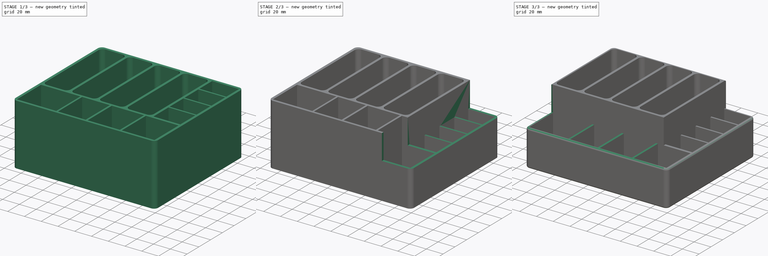
[diagram: build sequence overview — one tinted view per stage of 3, left to right]
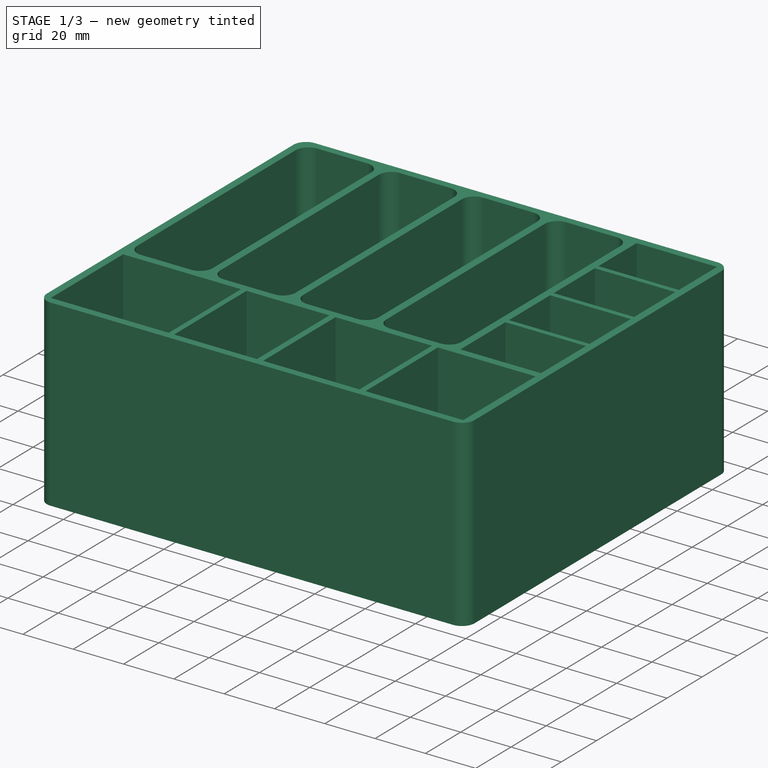
[diagram: stage 1 of 3 — iso view after this stage's code; geometry added in this stage tinted green]
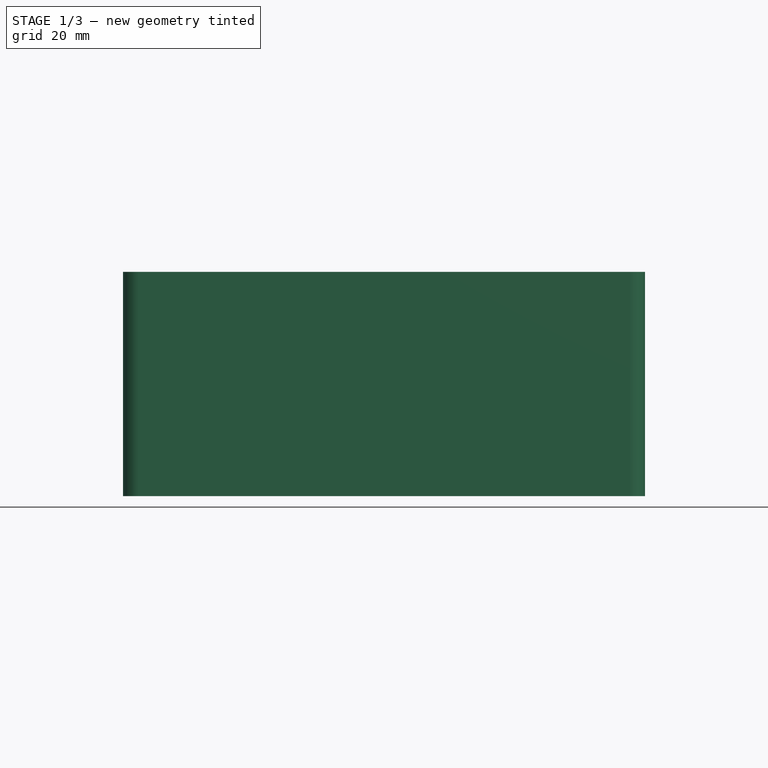
[diagram: stage 1 of 3 — front view after this stage's code; geometry added in this stage tinted green]
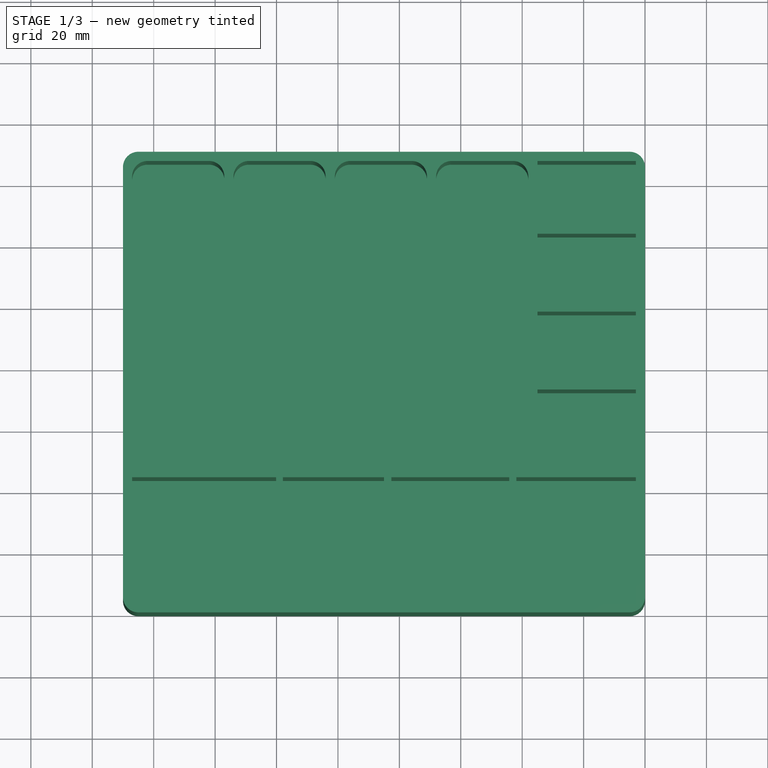
[diagram: stage 1 of 3 — top view after this stage's code; geometry added in this stage tinted green]
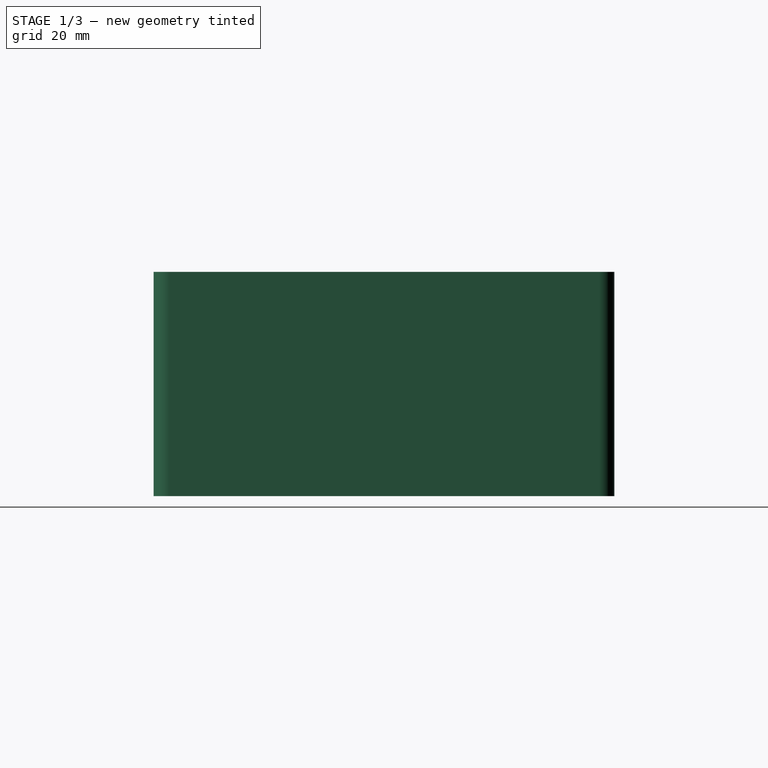
[diagram: stage 1 of 3 — right view after this stage's code; geometry added in this stage tinted green]
FCSTD DOCUMENT  (FreeCAD 1.1R20251125 (Git shallow))
Label: box-2
License: All rights reserved
LicenseURL: https://en.wikipedia.org/wiki/All_rights_reserved
objects: Sketcher::SketchObject×4, PartDesign::Pad×2, PartDesign::Pocket×2, App::Point×1, PartDesign::Fillet×1, PartDesign::Body×1
note: 24 computed .brp shape members not serialized (recipe doc carries the construction recipe); baked Part::Feature solids carry a one-line shape summary decoded from their .brp

FEATURE [App::Point] Origin001
  Role = Origin
FEATURE [Sketcher::SketchObject] Sketch
  ArcFitTolerance = 1e-06
  AttachmentSupport = -> [Origin]
  ExternalTypes = [0]
  FullyConstrained = false
  MakeInternals = false
  MapMode = 5
  sketch-geometry (84):
    g0: LineSegment StartX=0 StartY=5 StartZ=0 EndX=0 EndY=145 EndZ=0
    g1: LineSegment StartX=-5 StartY=150 StartZ=0 EndX=-165 EndY=150 EndZ=0
    g2: LineSegment StartX=-170 StartY=145 StartZ=0 EndX=-170 EndY=5 EndZ=0
    g3: LineSegment StartX=-165 StartY=0 StartZ=0 EndX=-5 EndY=0 EndZ=0
    g4: ArcOfCircle CenterX=-5 CenterY=5 CenterZ=0 NormalX=0 NormalY=0 NormalZ=1 AngleXU=0 Radius=5 StartAngle=4.71239 EndAngle=6.28319
    g5: ArcOfCircle CenterX=-5 CenterY=145 CenterZ=0 NormalX=0 NormalY=0 NormalZ=1 AngleXU=0 Radius=5 StartAngle=0 EndAngle=1.5708
    g6: ArcOfCircle CenterX=-165 CenterY=145 CenterZ=0 NormalX=0 NormalY=0 NormalZ=1 AngleXU=0 Radius=5 StartAngle=1.5708 EndAngle=3.14159
    g7: ArcOfCircle CenterX=-165 CenterY=5 CenterZ=0 NormalX=0 NormalY=0 NormalZ=1 AngleXU=0 Radius=5 StartAngle=3.14159 EndAngle=4.71239
    g8: GeomPoint [constr] X=0 Y=0 Z=0
    g9: GeomPoint [constr] X=-170 Y=150 Z=0
    g10: LineSegment StartX=-137 StartY=52 StartZ=0 EndX=-137 EndY=142 EndZ=0
    g11: LineSegment StartX=-142 StartY=147 StartZ=0 EndX=-162 EndY=147 EndZ=0
    g12: LineSegment StartX=-167 StartY=142 StartZ=0 EndX=-167 EndY=52 EndZ=0
    g13: LineSegment StartX=-162 StartY=47 StartZ=0 EndX=-142 EndY=47 EndZ=0
    g14: ArcOfCircle CenterX=-142 CenterY=52 CenterZ=0 NormalX=0 NormalY=0 NormalZ=1 AngleXU=0 Radius=5 StartAngle=4.71239 EndAngle=6.28319
    g15: ArcOfCircle CenterX=-142 CenterY=142 CenterZ=0 NormalX=0 NormalY=0 NormalZ=1 AngleXU=0 Radius=5 StartAngle=2.7e-15 EndAngle=1.5708
    g16: ArcOfCircle CenterX=-162 CenterY=142 CenterZ=0 NormalX=0 NormalY=0 NormalZ=1 AngleXU=0 Radius=5 StartAngle=1.5708 EndAngle=3.14159
    g17: ArcOfCircle CenterX=-162 CenterY=52 CenterZ=0 NormalX=0 NormalY=0 NormalZ=1 AngleXU=0 Radius=5 StartAngle=3.14159 EndAngle=4.71239
    g18: GeomPoint [constr] X=-137 Y=47 Z=0
    g19: GeomPoint [constr] X=-167 Y=147 Z=0
    g20: LineSegment StartX=-104 StartY=52 StartZ=0 EndX=-104 EndY=142 EndZ=0
    g21: LineSegment StartX=-109 StartY=147 StartZ=0 EndX=-129 EndY=147 EndZ=0
    g22: LineSegment StartX=-134 StartY=142 StartZ=0 EndX=-134 EndY=52 EndZ=0
    g23: LineSegment StartX=-129 StartY=47 StartZ=0 EndX=-109 EndY=47 EndZ=0
    g24: ArcOfCircle CenterX=-109 CenterY=52 CenterZ=0 NormalX=0 NormalY=0 NormalZ=1 AngleXU=0 Radius=5 StartAngle=4.71239 EndAngle=6.28319
    g25: ArcOfCircle CenterX=-109 CenterY=142 CenterZ=0 NormalX=0 NormalY=0 NormalZ=1 AngleXU=0 Radius=5 StartAngle=0 EndAngle=1.5708
    g26: ArcOfCircle CenterX=-129 CenterY=142 CenterZ=0 NormalX=0 NormalY=0 NormalZ=1 AngleXU=0 Radius=5 StartAngle=1.5708 EndAngle=3.14159
    g27: ArcOfCircle CenterX=-129 CenterY=52 CenterZ=0 NormalX=0 NormalY=0 NormalZ=1 AngleXU=0 Radius=5 StartAngle=3.14159 EndAngle=4.71239
    g28: GeomPoint [constr] X=-104 Y=47 Z=0
    g29: GeomPoint [constr] X=-134 Y=147 Z=0
    g30: LineSegment StartX=-71 StartY=52.0004 StartZ=0 EndX=-71 EndY=142 EndZ=0
    g31: LineSegment StartX=-76 StartY=147 StartZ=0 EndX=-96 EndY=147 EndZ=0
    g32: LineSegment StartX=-101 StartY=142 StartZ=0 EndX=-101 EndY=52.0004 EndZ=0
    g33: LineSegment StartX=-96 StartY=47.0004 StartZ=0 EndX=-76 EndY=47.0004 EndZ=0
    g34: ArcOfCircle CenterX=-76 CenterY=52.0004 CenterZ=0 NormalX=0 NormalY=0 NormalZ=1 AngleXU=0 Radius=5 StartAngle=4.71239 EndAngle=6.28319
    g35: ArcOfCircle CenterX=-76 CenterY=142 CenterZ=0 NormalX=0 NormalY=0 NormalZ=1 AngleXU=0 Radius=5 StartAngle=2.4e-15 EndAngle=1.5708
    g36: ArcOfCircle CenterX=-96 CenterY=142 CenterZ=0 NormalX=0 NormalY=0 NormalZ=1 AngleXU=0 Radius=5 StartAngle=1.5708 EndAngle=3.14159
    g37: ArcOfCircle CenterX=-96 CenterY=52.0004 CenterZ=0 NormalX=0 NormalY=0 NormalZ=1 AngleXU=0 Radius=5 StartAngle=3.14159 EndAngle=4.71239
    g38: GeomPoint [constr] X=-71 Y=47.0004 Z=0
    g39: GeomPoint [constr] X=-101 Y=147 Z=0
    g40: LineSegment StartX=-38 StartY=52 StartZ=0 EndX=-38 EndY=142 EndZ=0
    g41: LineSegment StartX=-43 StartY=147 StartZ=0 EndX=-63 EndY=147 EndZ=0
    g42: LineSegment StartX=-68 StartY=142 StartZ=0 EndX=-68 EndY=52 EndZ=0
    g43: LineSegment StartX=-63 StartY=47 StartZ=0 EndX=-43 EndY=47 EndZ=0
    g44: ArcOfCircle CenterX=-43 CenterY=52 CenterZ=0 NormalX=0 NormalY=0 NormalZ=1 AngleXU=0 Radius=5 StartAngle=4.71239 EndAngle=6.28319
    g45: ArcOfCircle CenterX=-43 CenterY=142 CenterZ=0 NormalX=0 NormalY=0 NormalZ=1 AngleXU=0 Radius=5 StartAngle=-9e-16 EndAngle=1.5708
    g46: ArcOfCircle CenterX=-63 CenterY=142 CenterZ=0 NormalX=0 NormalY=0 NormalZ=1 AngleXU=0 Radius=5 StartAngle=1.5708 EndAngle=3.14159
    g47: ArcOfCircle CenterX=-63 CenterY=52 CenterZ=0 NormalX=0 NormalY=0 NormalZ=1 AngleXU=0 Radius=5 StartAngle=3.14159 EndAngle=4.71239
    g48: GeomPoint [constr] X=-38 Y=47 Z=0
    g49: GeomPoint [constr] X=-68 Y=147 Z=0
    g50: LineSegment StartX=-35 StartY=147 StartZ=0 EndX=-35 EndY=125.307 EndZ=0
    g51: LineSegment StartX=-35 StartY=47 StartZ=0 EndX=-3 EndY=47 EndZ=0
    g52: LineSegment StartX=-3 StartY=47 StartZ=0 EndX=-3 EndY=72.4674 EndZ=0
    g53: LineSegment StartX=-3 StartY=147 StartZ=0 EndX=-35 EndY=147 EndZ=0
    g54: LineSegment StartX=-35 StartY=123.307 StartZ=0 EndX=-3 EndY=123.307 EndZ=0
    g55: LineSegment StartX=-3 StartY=125.307 StartZ=0 EndX=-35 EndY=125.307 EndZ=0
    g56: LineSegment StartX=-3 StartY=125.307 StartZ=0 EndX=-3 EndY=147 EndZ=0
    g57: LineSegment StartX=-35 StartY=123.307 StartZ=0 EndX=-35 EndY=99.9347 EndZ=0
    g58: LineSegment StartX=-3 StartY=99.9347 StartZ=0 EndX=-35 EndY=99.9347 EndZ=0
    g59: LineSegment StartX=-35 StartY=97.9347 StartZ=0 EndX=-3 EndY=97.9347 EndZ=0
    g60: LineSegment StartX=-3 StartY=74.5626 StartZ=0 EndX=-35 EndY=74.5626 EndZ=0
    g61: LineSegment StartX=-35 StartY=72.5626 StartZ=0 EndX=-3 EndY=72.5626 EndZ=0
    g62: LineSegment StartX=-35 StartY=97.9347 StartZ=0 EndX=-35 EndY=74.5626 EndZ=0
    g63: LineSegment StartX=-3 StartY=99.9347 StartZ=0 EndX=-3 EndY=123.307 EndZ=0
    g64: LineSegment StartX=-35 StartY=72.4674 StartZ=0 EndX=-35 EndY=47 EndZ=0
    g65: LineSegment StartX=-3 StartY=72.4674 StartZ=0 EndX=-3 EndY=72.5626 EndZ=0
    g66: LineSegment StartX=-35 StartY=72.5626 StartZ=0 EndX=-35 EndY=72.4674 EndZ=0
    g67: LineSegment StartX=-3 StartY=74.5626 StartZ=0 EndX=-3 EndY=97.9347 EndZ=0
    g68: LineSegment StartX=-167 StartY=44 StartZ=0 EndX=-167 EndY=3 EndZ=0
    g69: LineSegment StartX=-167 StartY=3 StartZ=0 EndX=-120.132 EndY=3 EndZ=0
    g70: LineSegment StartX=-3 StartY=2.89996 StartZ=0 EndX=-3 EndY=44 EndZ=0
    g71: LineSegment StartX=-3 StartY=44 StartZ=0 EndX=-41.8951 EndY=44 EndZ=0
    g72: LineSegment StartX=-120.132 StartY=44 StartZ=0 EndX=-120.132 EndY=3 EndZ=0
    g73: LineSegment StartX=-85 StartY=44 StartZ=0 EndX=-85 EndY=2.89996 EndZ=0
    g74: LineSegment StartX=-44.2328 StartY=44 StartZ=0 EndX=-44.2328 EndY=2.89996 EndZ=0
    g75: LineSegment StartX=-117.944 StartY=44 StartZ=0 EndX=-117.944 EndY=2.89996 EndZ=0
    g76: LineSegment StartX=-120.132 StartY=44 StartZ=0 EndX=-167 EndY=44 EndZ=0
    g77: LineSegment StartX=-117.944 StartY=2.89996 StartZ=0 EndX=-85 EndY=2.89996 EndZ=0
    g78: LineSegment StartX=-82.5781 StartY=44 StartZ=0 EndX=-82.5781 EndY=2.89996 EndZ=0
    g79: LineSegment StartX=-41.8951 StartY=44 StartZ=0 EndX=-41.8951 EndY=2.89996 EndZ=0
    g80: LineSegment StartX=-85 StartY=44 StartZ=0 EndX=-117.944 EndY=44 EndZ=0
    g81: LineSegment StartX=-82.5781 StartY=2.89996 StartZ=0 EndX=-44.2328 EndY=2.89996 EndZ=0
    g82: LineSegment StartX=-44.2328 StartY=44 StartZ=0 EndX=-82.5781 EndY=44 EndZ=0
    g83: LineSegment StartX=-41.8951 StartY=2.89996 StartZ=0 EndX=-3 EndY=2.89996 EndZ=0
  constraints (187):
    c: Tangent(g0,g4) = -1.5708
    c: Tangent(g0,g5) = -1.5708
    c: Tangent(g1,g5) = -1.5708
    c: Tangent(g1,g6) = -1.5708
    c: Tangent(g2,g6) = -1.5708
    c: Tangent(g2,g7) = -1.5708
    c: Tangent(g3,g7) = -1.5708
    c: Tangent(g3,g4) = -1.5708
    c: Vertical(g0)
    c: Vertical(g2)
    c: Horizontal(g1)
    c: Horizontal(g3)
    c: Equal(g4,g5)
    c: Equal(g5,g6)
    c: Equal(g6,g7)
    c: PointOnObject(g8,g0)
    c: PointOnObject(g8,g3)
    c: PointOnObject(g9,g1)
    c: PointOnObject(g9,g2)
    c: Coincident(g8,g-1)
    c: Radius(g5) = 5
    c: Distance(g0,g2) = 170
    c: Distance(g3,g1) = 150
    c: Tangent(g10,g14) = -1.5708
    c: Tangent(g10,g15) = -1.5708
    c: Tangent(g11,g15) = -1.5708
    c: Tangent(g11,g16) = -1.5708
    c: Tangent(g12,g16) = -1.5708
    c: Tangent(g12,g17) = -1.5708
    c: Tangent(g13,g17) = -1.5708
    c: Tangent(g13,g14) = -1.5708
    c: Vertical(g10)
    c: Vertical(g12)
    c: Horizontal(g11)
    c: Horizontal(g13)
    c: Equal(g14,g15)
    c: Equal(g15,g16)
    c: Equal(g16,g17)
    c: PointOnObject(g18,g10)
    c: PointOnObject(g18,g13)
    c: PointOnObject(g19,g11)
    c: PointOnObject(g19,g12)
    c: Radius(g15) = 5
    c: Distance(g10,g12) = 30
    c: Distance(g13,g11) = 100
    c: Distance(g1,g11) = 3
    c: Distance(g12,g2) = 3
    c: Tangent(g20,g24) = -1.5708
    c: Tangent(g30,g34) = -1.5708
    c: Tangent(g40,g44) = -1.5708
    c: Tangent(g20,g25) = -1.5708
    c: Tangent(g30,g35) = -1.5708
    c: Tangent(g40,g45) = -1.5708
    c: Tangent(g21,g25) = -1.5708
    c: Tangent(g31,g35) = -1.5708
    c: Tangent(g41,g45) = -1.5708
    c: Tangent(g21,g26) = -1.5708
    c: Tangent(g31,g36) = -1.5708
    c: Tangent(g41,g46) = -1.5708
    c: Tangent(g22,g26) = -1.5708
    c: Tangent(g32,g36) = -1.5708
    c: Tangent(g42,g46) = -1.5708
    c: Tangent(g22,g27) = -1.5708
    c: Tangent(g32,g37) = -1.5708
    c: Tangent(g42,g47) = -1.5708
    c: Tangent(g23,g27) = -1.5708
    c: Tangent(g33,g37) = -1.5708
    c: Tangent(g43,g47) = -1.5708
    c: Tangent(g23,g24) = -1.5708
    c: Tangent(g33,g34) = -1.5708
    c: Tangent(g43,g44) = -1.5708
    c: Vertical(g20)
    c: Vertical(g30)
    c: Vertical(g40)
    c: Vertical(g22)
    c: Vertical(g32)
    c: Vertical(g42)
    c: Horizontal(g21)
    c: Horizontal(g31)
    c: Horizontal(g41)
    c: Horizontal(g23)
    c: Horizontal(g33)
    c: Horizontal(g43)
    c: Equal(g24,g25)
    c: Equal(g34,g35)
    c: Equal(g44,g45)
    c: Equal(g25,g26)
    c: Equal(g35,g36)
    c: Equal(g45,g46)
    c: Equal(g26,g27)
    c: Equal(g36,g37)
    c: Equal(g46,g47)
    c: PointOnObject(g28,g20)
    c: PointOnObject(g38,g30)
    c: PointOnObject(g48,g40)
    c: PointOnObject(g28,g23)
    c: PointOnObject(g38,g33)
    c: PointOnObject(g48,g43)
    c: PointOnObject(g29,g21)
    c: PointOnObject(g39,g31)
    c: PointOnObject(g49,g41)
    c: PointOnObject(g29,g22)
    c: PointOnObject(g39,g32)
    c: PointOnObject(g49,g42)
    c: Radius(g25) = 5
    c: Radius(g35) = 5
    c: Radius(g45) = 5
    c: Distance(g20,g22) = 30
    c: Distance(g30,g32) = 30
    c: Distance(g40,g42) = 30
    c: Distance(g23,g21) = 100
    c: Distance(g33,g31) = 100
    c: Distance(g43,g41) = 100
    c: Distance(g22,g10) = 3
    c: Distance(g32,g20) = 3
    c: Distance(g42,g30) = 3
    c: Coincident(g64,g51)
    c: Coincident(g51,g52)
    c: Coincident(g56,g53)
    c: Coincident(g53,g50)
    c: Horizontal(g51)
    c: Horizontal(g53)
    c: Distance(g50,g40) = 3
    c: Distance(g53,g1) = 3
    c: Distance(g51,g53) = 100
    c: Horizontal(g54)
    c: Horizontal(g55)
    c: Distance(g54,g55) = 2
    c: Vertical(g56)
    c: Coincident(g56,g55)
    c: Vertical(g50)
    c: Coincident(g55,g50)
    c: Coincident(g57,g54)
    c: Horizontal(g59)
    c: Horizontal(g61)
    c: Horizontal(g58)
    c: Horizontal(g60)
    c: Distance(g59,g58) = 2
    c: Distance(g61,g60) = 2
    c: Vertical(g57)
    c: Coincident(g57,g58)
    c: Coincident(g62,g59)
    c: Vertical(g63)
    c: Coincident(g67,g59)
    c: Coincident(g63,g58)
    c: Coincident(g66,g64)
    c: Coincident(g52,g65)
    c: Coincident(g62,g60)
    c: Coincident(g66,g61)
    c: Coincident(g65,g61)
    c: Coincident(g67,g60)
    c: Coincident(g68,g69)
    c: Coincident(g83,g70)
    c: Coincident(g70,g71)
    c: Coincident(g76,g68)
    c: Vertical(g68)
    c: Vertical(g70)
    c: Distance(g2,g68) = 3
    c: Distance(g0,g70) = 3
    c: Vertical(g72)
    c: Symmetric(g71,g76,g73)
    c: Vertical(g74)
    c: Vertical(g75)
    c: Horizontal(g76)
    c: Distance(g13,g76) = 3
    c: Coincident(g72,g76)
    c: Coincident(g75,g80)
    c: Horizontal(g69)
    c: Distance(g3,g69) = 3
    c: Coincident(g72,g69)
    c: Coincident(g75,g77)
    c: Vertical(g78)
    c: Vertical(g79)
    c: Horizontal(g80)
    c: Coincident(g78,g82)
    c: Coincident(g80,g73)
    c: Horizontal(g77)
    c: Coincident(g78,g81)
    c: Coincident(g73,g77)
    c: Horizontal(g71)
    c: Horizontal(g82)
    c: Coincident(g74,g82)
    c: Coincident(g79,g71)
    c: Horizontal(g81)
    c: Horizontal(g83)
    c: Coincident(g74,g81)
    c: Coincident(g79,g83)
FEATURE [PartDesign::Pad] Pad
  Direction = (0,0,1)
  Length = 70
  Length2 = 10
  Profile = -> Sketch
  ReferenceAxis = -> Sketch [N_Axis]
  Refine = true
  SideType = 0
  Suppressed = false
  Type = 0
  Type2 = 0
FEATURE [Sketcher::SketchObject] Sketch001
  ArcFitTolerance = 1e-06
  AttachmentSupport = -> [Origin]
  ExternalGeometry = -> [Pad]
  ExternalTypes = [0,0,0,0,0,0,0,0]
  FullyConstrained = true
  MakeInternals = false
  MapMode = 5
FEATURE [PartDesign::Pad] Pad001
  BaseFeature = -> Pad
  Direction = (0,0,1)
  Length = -3
  Length2 = 10
  Profile = -> Sketch001
  ReferenceAxis = -> Sketch001 [N_Axis]
  Refine = true
  SideType = 0
  Suppressed = false
  Type = 0
  Type2 = 0
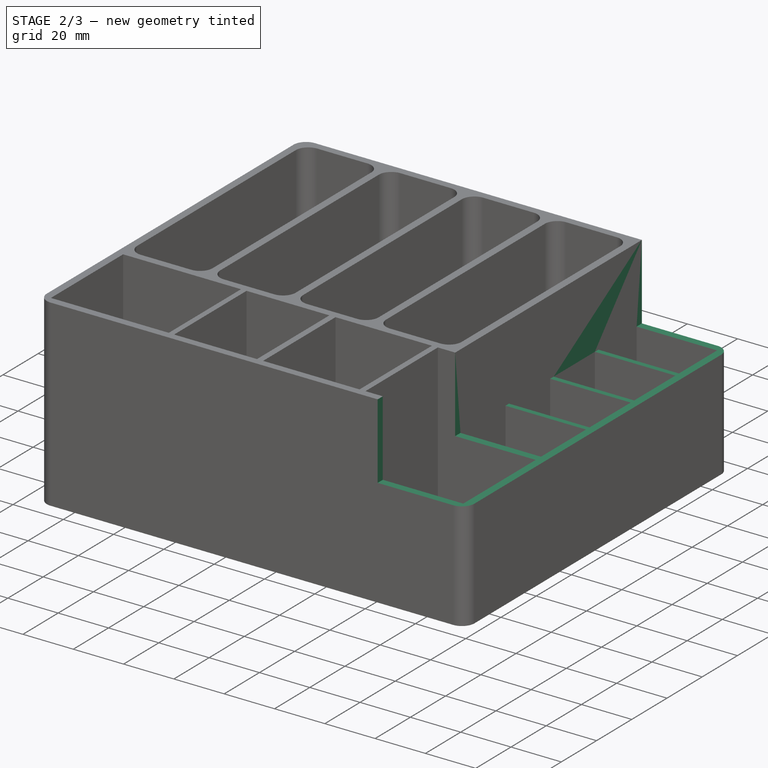
[diagram: stage 2 of 3 — iso view after this stage's code; geometry added in this stage tinted green]
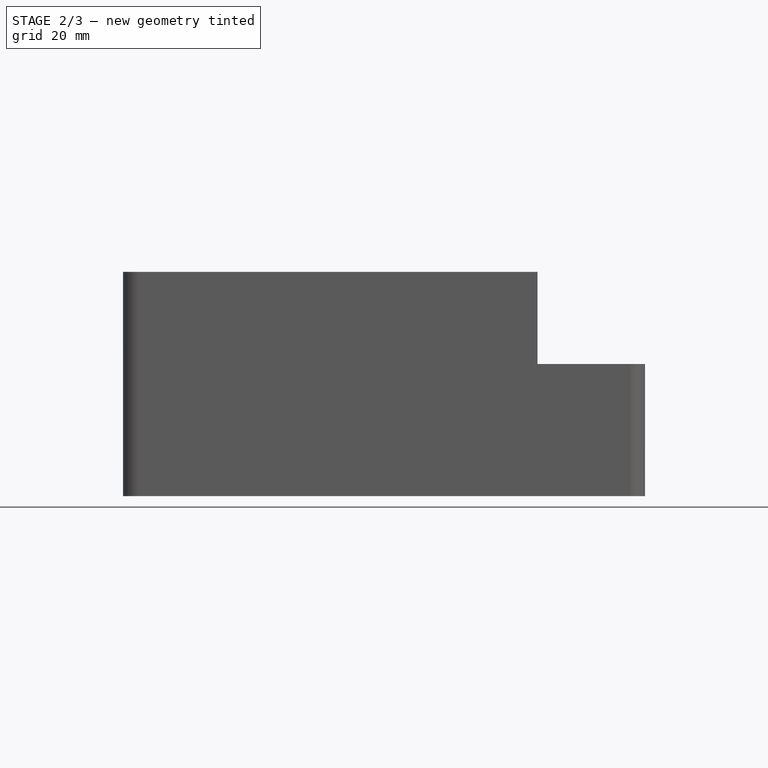
[diagram: stage 2 of 3 — front view after this stage's code; geometry added in this stage tinted green]
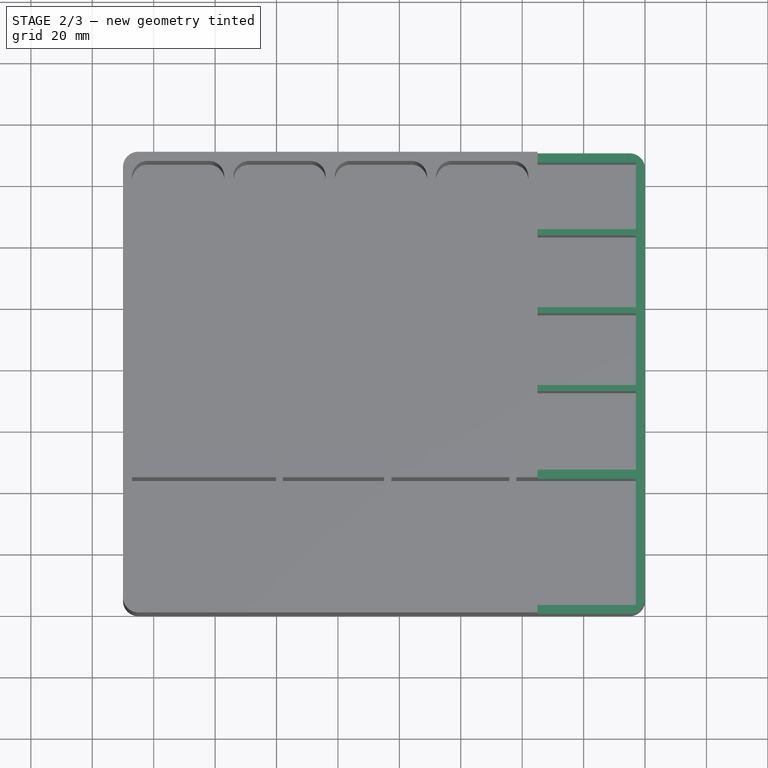
[diagram: stage 2 of 3 — top view after this stage's code; geometry added in this stage tinted green]
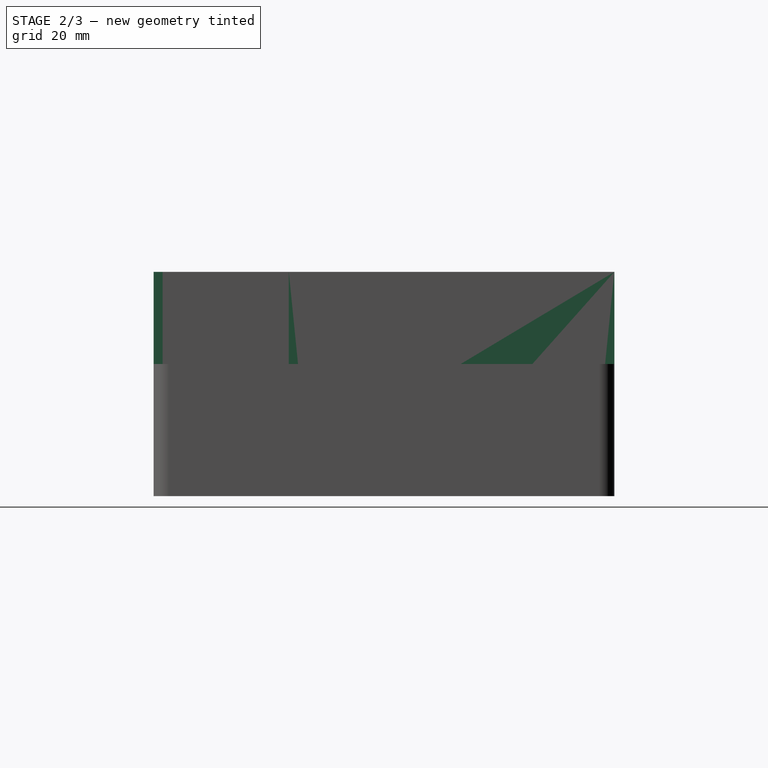
[diagram: stage 2 of 3 — right view after this stage's code; geometry added in this stage tinted green]
FEATURE [Sketcher::SketchObject] Sketch002
  ArcFitTolerance = 1e-06
  AttachmentSupport = -> [Pad001]
  ExternalTypes = [0]
  FullyConstrained = false
  MakeInternals = false
  MapMode = 5
  Placement = pos=(0,0,0) rot=(1,0,0;1.5708rad)
  sketch-geometry (4):
    g0: LineSegment StartX=0 StartY=77.9961 StartZ=0 EndX=-35 EndY=77.9961 EndZ=0
    g1: LineSegment StartX=-35 StartY=77.9961 StartZ=0 EndX=-35 EndY=40 EndZ=0
    g2: LineSegment StartX=-35 StartY=40 StartZ=0 EndX=0 EndY=40 EndZ=0
    g3: LineSegment StartX=0 StartY=40 StartZ=0 EndX=0 EndY=77.9961 EndZ=0
  constraints (11):
    c: Coincident(g0,g1)
    c: Coincident(g1,g2)
    c: Coincident(g2,g3)
    c: Coincident(g3,g0)
    c: Horizontal(g0)
    c: Horizontal(g2)
    c: Vertical(g1)
    c: Vertical(g3)
    c: PointOnObject(g0,g-2)
    c: DistanceX(g0,g0) = 35
    c: Distance(g-1,g2) = 40
FEATURE [PartDesign::Pocket] Pocket
  BaseFeature = -> Pad001
  Direction = (0,1,0)
  Length = 160
  Length2 = 5
  Profile = -> Sketch002
  ReferenceAxis = -> Sketch002 [N_Axis]
  Refine = true
  SideType = 0
  Suppressed = false
  Type = 0
  Type2 = 0
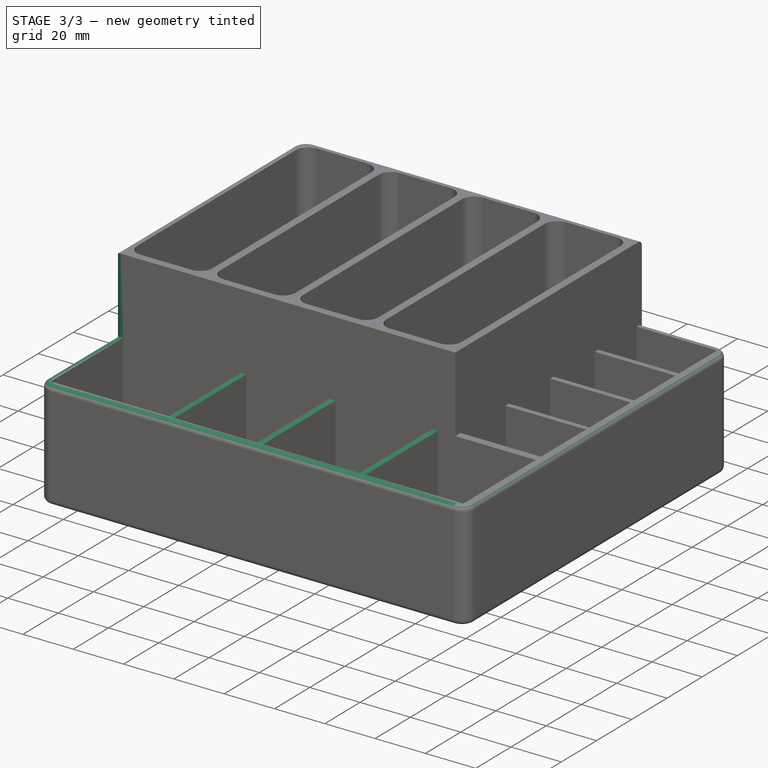
[diagram: stage 3 of 3 — iso view after this stage's code; geometry added in this stage tinted green]
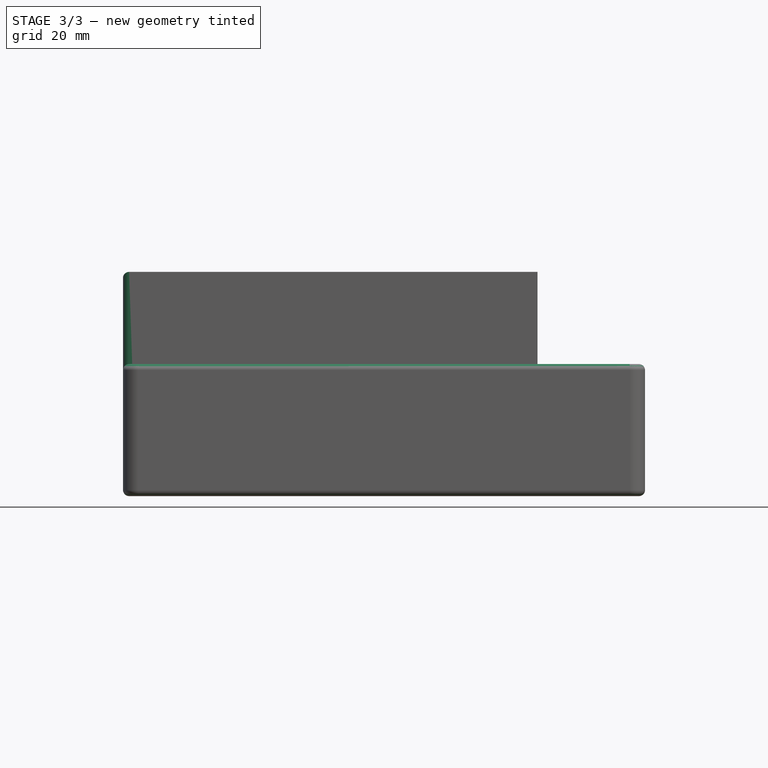
[diagram: stage 3 of 3 — front view after this stage's code; geometry added in this stage tinted green]
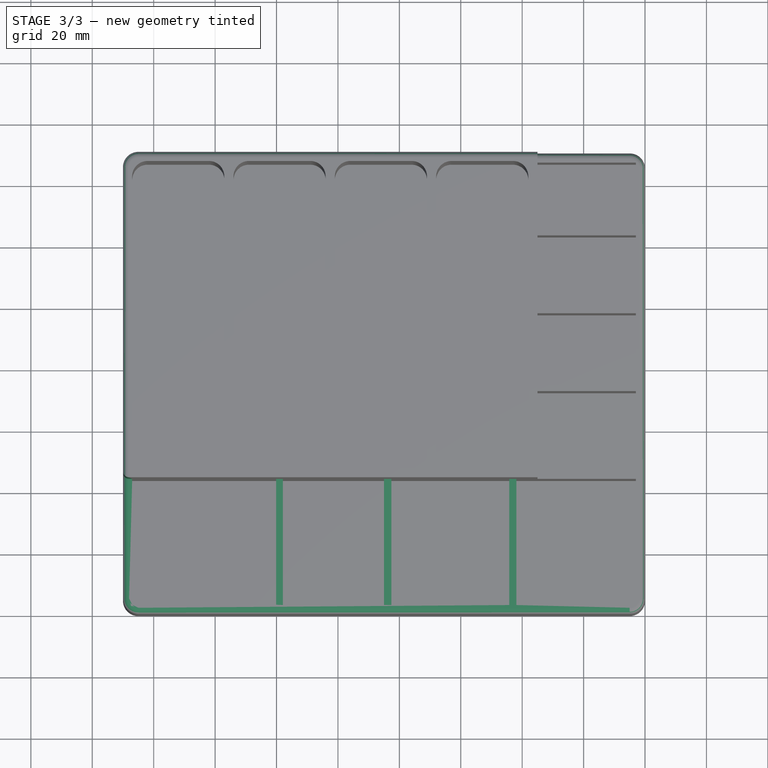
[diagram: stage 3 of 3 — top view after this stage's code; geometry added in this stage tinted green]
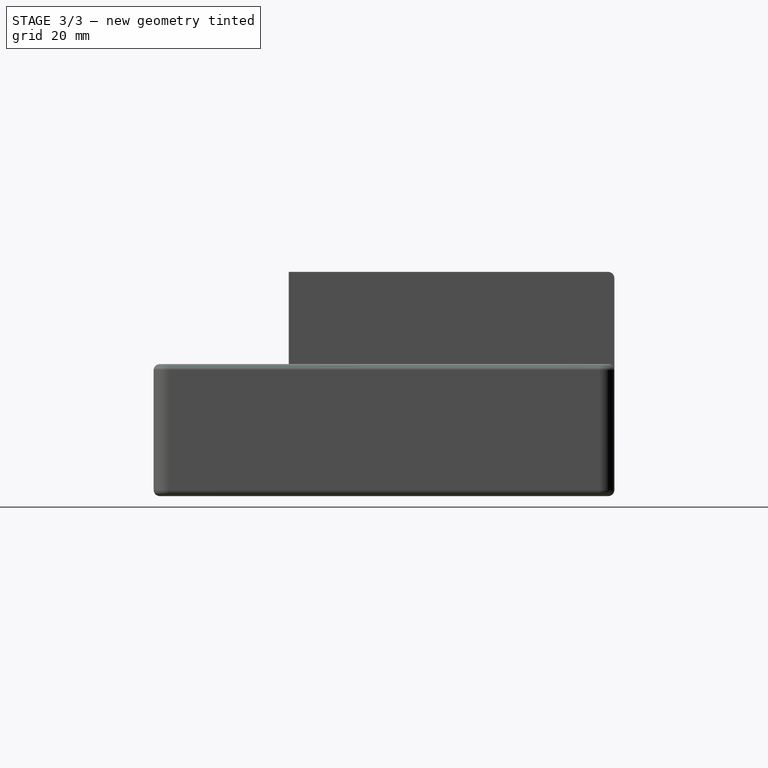
[diagram: stage 3 of 3 — right view after this stage's code; geometry added in this stage tinted green]
FEATURE [Sketcher::SketchObject] Sketch003
  ArcFitTolerance = 1e-06
  AttachmentSupport = -> [Pocket]
  ExternalTypes = [0]
  FullyConstrained = false
  MakeInternals = false
  MapMode = 5
  Placement = pos=(-170,0,0) rot=(0.57735,-0.57735,-0.57735;2.0944rad)
  sketch-geometry (4):
    g0: LineSegment StartX=0 StartY=86.2697 StartZ=0 EndX=-44 EndY=86.2697 EndZ=0
    g1: LineSegment StartX=-44 StartY=86.2697 StartZ=0 EndX=-44 EndY=40 EndZ=0
    g2: LineSegment StartX=-44 StartY=40 StartZ=0 EndX=0 EndY=40 EndZ=0
    g3: LineSegment StartX=0 StartY=40 StartZ=0 EndX=0 EndY=86.2697 EndZ=0
  constraints (11):
    c: Coincident(g0,g1)
    c: Coincident(g1,g2)
    c: Coincident(g2,g3)
    c: Coincident(g3,g0)
    c: Horizontal(g0)
    c: Horizontal(g2)
    c: Vertical(g1)
    c: Vertical(g3)
    c: PointOnObject(g0,g-2)
    c: DistanceX(g0,g0) = 44
    c: Distance(g-1,g2) = 40
FEATURE [PartDesign::Pocket] Pocket001
  BaseFeature = -> Pocket
  Direction = (1,0,0)
  Length = 190
  Length2 = 5
  Profile = -> Sketch003
  ReferenceAxis = -> Sketch003 [N_Axis]
  Refine = true
  SideType = 0
  Suppressed = false
  Type = 0
  Type2 = 0
FEATURE [PartDesign::Fillet] Fillet
  Base = -> Pocket001 [Vertex69,Face21]
  BaseFeature = -> Pocket001
  Radius = 2
  Refine = true
  SupportTransform = false
  Suppressed = false
  UseAllEdges = false
FEATURE [PartDesign::Body] Body
  AllowCompound = true
  Group = -> [Sketch,Pad,Sketch001,Pad001,Sketch002,Pocket,Sketch003,Pocket001,Fillet]
  Origin = -> Origin
  Tip = -> Fillet
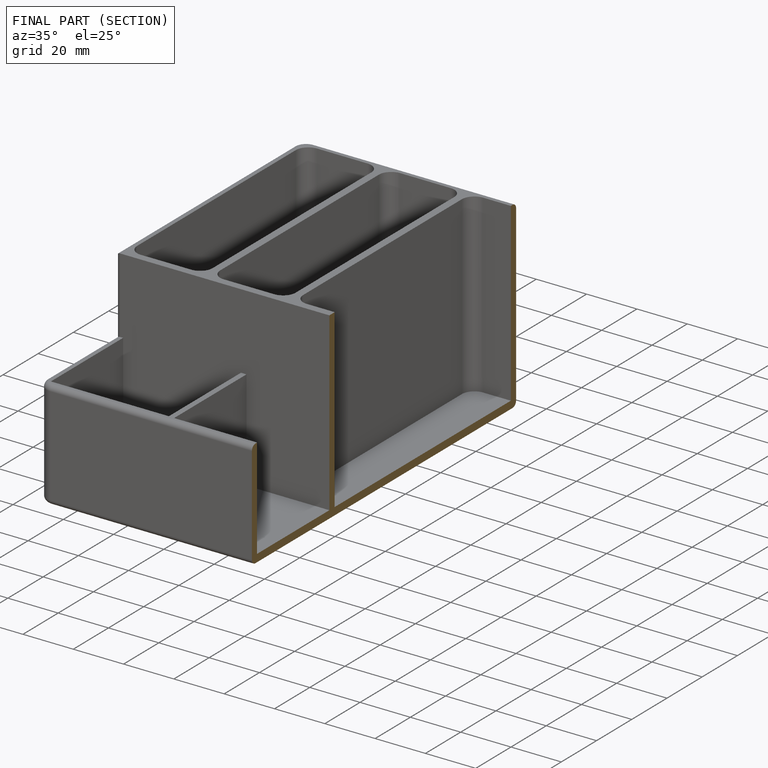
[diagram: finished part — half-section view (interior)]
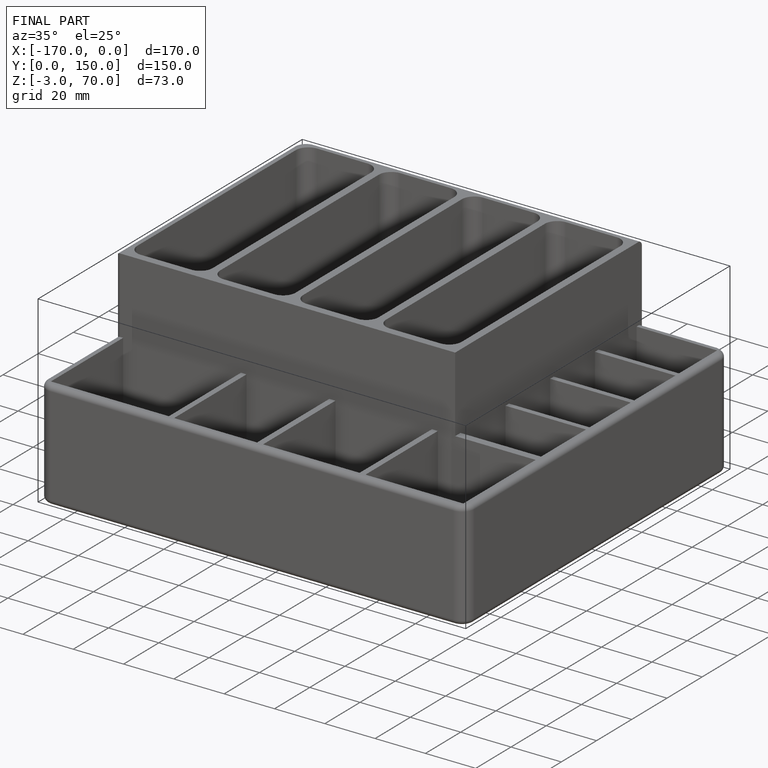
[diagram: finished part — iso view with bounding-box wireframe]
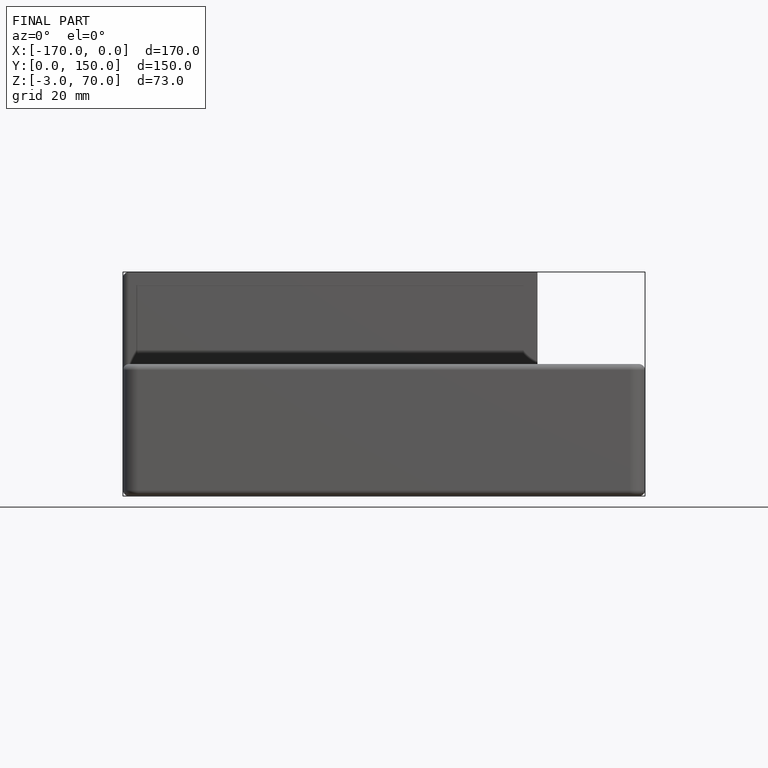
[diagram: finished part — front view with bounding-box wireframe]
